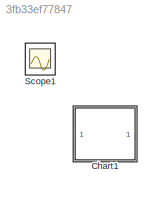
MODEL slx_3fb33ef77847
KIND model
CONFIG AbsTol = auto
CONFIG EnableMultiTasking = off
CONFIG FixedStep = 0.001
CONFIG MaxStep = auto
CONFIG MinStep = auto
CONFIG RelTol = 1e-3
CONFIG SampleTimeConstraint = Unconstrained
CONFIG Solver = FixedStepAuto
CONFIG SolverName = FixedStepAuto
CONFIG StartTime = 0.0
CONFIG StopTime = 500
WORKSPACE source: mxarray member
WORKSPACE Sig: Simulink.Signal (value not decoded)
WORKSPACE b = 0.2
WORKSPACE k = 1
WORKSPACE m = 1
WORKSPACE u = 1
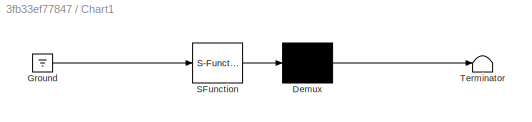
BLOCK [SubSystem] Chart1
  ErrorFcn = Stateflow.Translate.translate
  PermitHierarchicalResolution = ExplicitOnly
  Ports = []
  RequestExecContextInheritance = off
  SFBlockType = Chart
  TreatAsAtomicUnit = on
BLOCK [Demux] Chart1/ Demux 
  Outputs = 1
  Ports = [1, 1]
BLOCK [Ground] Chart1/ Ground 
BLOCK [S-Function] Chart1/ SFunction 
  EnableBusSupport = on
  FunctionName = sf_sfun
  PortCounts = [1 1]
  Ports = [1, 1]
  SFcnIsStateOwnerBlock = off
  SFunctionDeploymentMode = off
  Tag = Stateflow S-Function 1
BLOCK [Terminator] Chart1/ Terminator 
BLOCK [Scope] Scope1
  Floating = off
  IOType = viewer
  NumInputPorts = 1
  Ports = []
  ScopeSpecificationString = Simulink.scopes.TimeScopeBlockCfg('CurrentConfiguration', extmgr.ConfigurationSet(extmgr.Configuration('Core','General UI',true),extmgr.Configuration('Core','Source UI',true),extmgr.Configuration('Sources','WiredSimulink',true,'DataLoggingVariableName','ScopeData1'),extmgr.Configuration('Visuals','Time Domain',true,'SerializedDisplays',{struct('MinYLimReal','-0.21522','MaxYLimReal','1.93694','YLab...<+1390ch>
CHART Chart1 states=10 transitions=16
  STATE_LABEL 'Increment\nflag=1;\nen:x=x+0.1;y=y+0.1;\n\n'
  STATE_LABEL 'Wall1\nen:ml.move_mass(massH,x,y)'
  STATE_LABEL 'Start\nen: x=5;y=6;\ndu: ml.move_mass(massH,x,y);'
  STATE_LABEL 'Top_Wall\nflag=0;\nen:x=x+0.1;y=y-0.1;'
  STATE_LABEL 'Wall2\nen:ml.move_mass(massH,x,y)'
  STATE_LABEL 'Right_Wall\nen:x=x+0.1;y=y+0.1;'
  STATE_LABEL 'Wall\nen:x=x-0.1;y=y+0.1;'
  STATE_LABEL 'Wall3\nen:ml.move_mass(massH,x,y)'
  STATE_LABEL 'Walll\ndu:x=x-0.1;y=y-0.1;'
  STATE_LABEL 'Wall4\nen:ml.move_mass(massH,x,y)'
CHART  states=0 transitions=0
